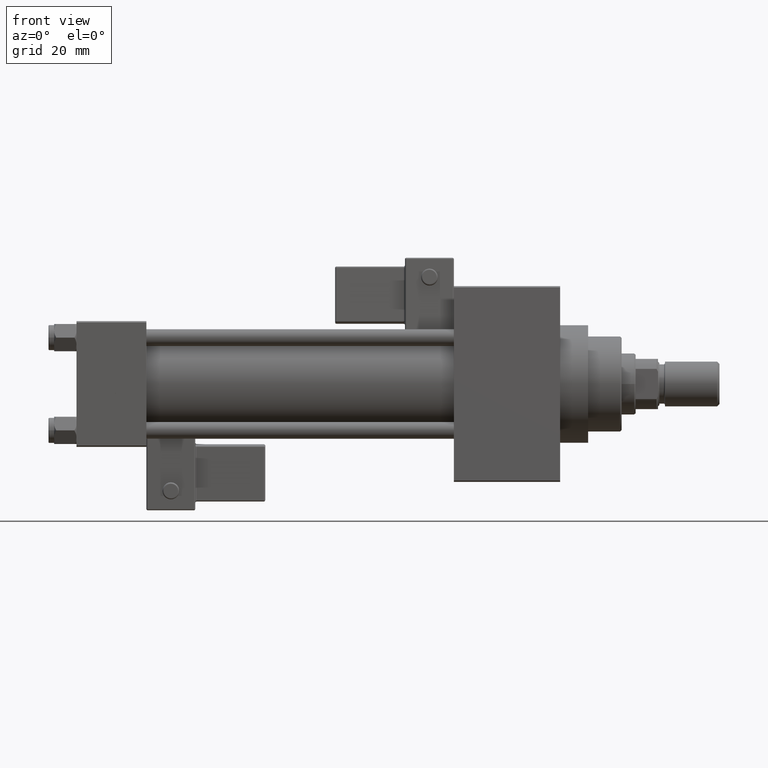
[diagram: clean part render]
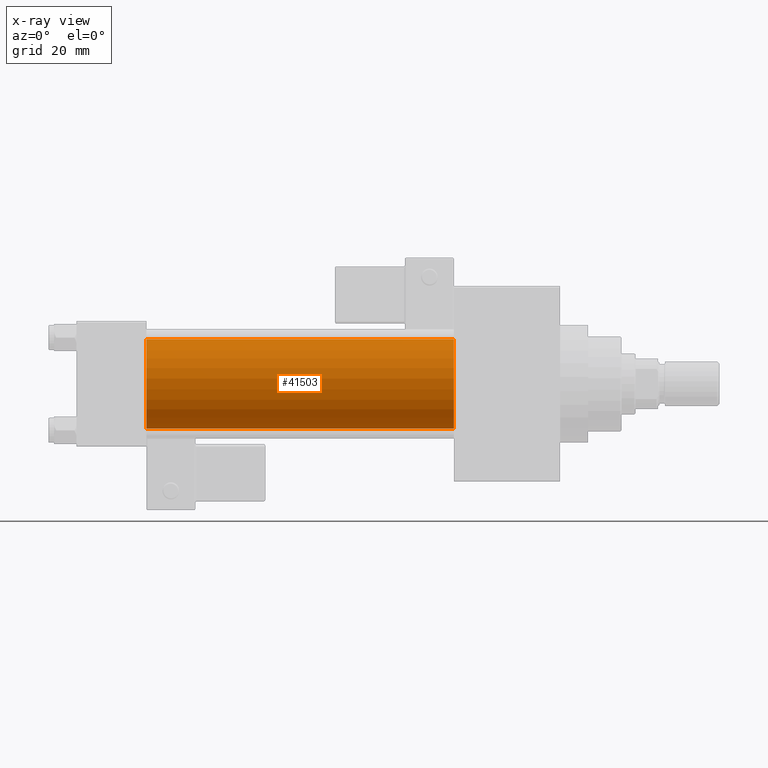
[diagram: x-ray — body ghosted, one internal face saturated and labeled with its STEP entity id]
A machine part, front view, then the same camera in x-ray: the body is ghosted and one INTERNAL B-rep face — a face not visible from any outside direction — is saturated and labeled: STEP entity #41503.
In plain terms, the highlighted cylindrical surface (partial cylindrical patch) has radius 16 mm, axis along (-1, -0, -0).
Its self-contained STEP definition (entity closure, byte-faithful):
#1311 = DIRECTION ( 'NONE',  ( -1.000000000000000000, -0.000000000000000000, -0.000000000000000000 ) ) ;
#2115 = EDGE_CURVE ( 'NONE', #4483, #6185, #29002, .T. ) ;
#3818 = EDGE_CURVE ( 'NONE', #21409, #6185, #51727, .T. ) ;
#4483 = VERTEX_POINT ( 'NONE', #49427 ) ;
#6185 = VERTEX_POINT ( 'NONE', #49400 ) ;
#6961 = DIRECTION ( 'NONE',  ( 0.000000000000000000, 0.000000000000000000, -1.000000000000000000 ) ) ;
#7185 = CARTESIAN_POINT ( 'NONE',  ( 135.0000000000000000, -2.602085213965210642E-15, 16.00000000000000000 ) ) ;
#9407 = ORIENTED_EDGE ( 'NONE', *, *, #31785, .F. ) ;
#9506 = CYLINDRICAL_SURFACE ( 'NONE', #14559, 16.00000000000000000 ) ;
#9821 = CARTESIAN_POINT ( 'NONE',  ( 135.0000000000000000, -6.426503353294456087E-16, -16.00000000000000000 ) ) ;
#13193 = CARTESIAN_POINT ( 'NONE',  ( 135.0000000000000000, -2.602085213965210642E-15, 0.000000000000000000 ) ) ;
#13952 = DIRECTION ( 'NONE',  ( -1.000000000000000000, -0.000000000000000000, -0.000000000000000000 ) ) ;
#14110 = VECTOR ( 'NONE', #1311, 1000.000000000000000 ) ;
#14559 = AXIS2_PLACEMENT_3D ( 'NONE', #13193, #13952, #25257 ) ;
#15262 = CARTESIAN_POINT ( 'NONE',  ( 135.0000000000000000, -6.426503353294456087E-16, -16.00000000000000000 ) ) ;
#15696 = DIRECTION ( 'NONE',  ( 1.000000000000000000, 0.000000000000000000, 0.000000000000000000 ) ) ;
#21409 = VERTEX_POINT ( 'NONE', #9821 ) ;
#23338 = CARTESIAN_POINT ( 'NONE',  ( 25.00000000000000000, -2.602085213965210642E-15, 0.000000000000000000 ) ) ;
#25219 = LINE ( 'NONE', #37286, #14110 ) ;
#25257 = DIRECTION ( 'NONE',  ( 0.000000000000000000, 0.000000000000000000, 1.000000000000000000 ) ) ;
#27180 = DIRECTION ( 'NONE',  ( 1.000000000000000000, 0.000000000000000000, 0.000000000000000000 ) ) ;
#27361 = DIRECTION ( 'NONE',  ( -1.000000000000000000, -0.000000000000000000, -0.000000000000000000 ) ) ;
#29002 = CIRCLE ( 'NONE', #50744, 16.00000000000000000 ) ;
#30002 = AXIS2_PLACEMENT_3D ( 'NONE', #50790, #27180, #6961 ) ;
#30517 = VERTEX_POINT ( 'NONE', #7185 ) ;
#31348 = ORIENTED_EDGE ( 'NONE', *, *, #33013, .T. ) ;
#31673 = CIRCLE ( 'NONE', #30002, 16.00000000000000000 ) ;
#31785 = EDGE_CURVE ( 'NONE', #30517, #4483, #25219, .T. ) ;
#33013 = EDGE_CURVE ( 'NONE', #30517, #21409, #31673, .T. ) ;
#37286 = CARTESIAN_POINT ( 'NONE',  ( 135.0000000000000000, -2.602085213965210642E-15, 16.00000000000000000 ) ) ;
#37587 = FACE_OUTER_BOUND ( 'NONE', #38454, .T. ) ;
#38454 = EDGE_LOOP ( 'NONE', ( #31348, #49167, #51515, #9407 ) ) ;
#39336 = DIRECTION ( 'NONE',  ( 0.000000000000000000, 0.000000000000000000, -1.000000000000000000 ) ) ;
#41503 = ADVANCED_FACE ( 'NONE', ( #37587 ), #9506, .F. ) ;
#48300 = VECTOR ( 'NONE', #27361, 1000.000000000000000 ) ;
#49167 = ORIENTED_EDGE ( 'NONE', *, *, #3818, .T. ) ;
#49400 = CARTESIAN_POINT ( 'NONE',  ( 25.00000000000000000, -6.426503353294456087E-16, -16.00000000000000000 ) ) ;
#49427 = CARTESIAN_POINT ( 'NONE',  ( 25.00000000000000000, -2.602085213965210642E-15, 16.00000000000000000 ) ) ;
#50744 = AXIS2_PLACEMENT_3D ( 'NONE', #23338, #15696, #39336 ) ;
#50790 = CARTESIAN_POINT ( 'NONE',  ( 135.0000000000000000, -2.602085213965210642E-15, 0.000000000000000000 ) ) ;
#51515 = ORIENTED_EDGE ( 'NONE', *, *, #2115, .F. ) ;
#51727 = LINE ( 'NONE', #15262, #48300 ) ;